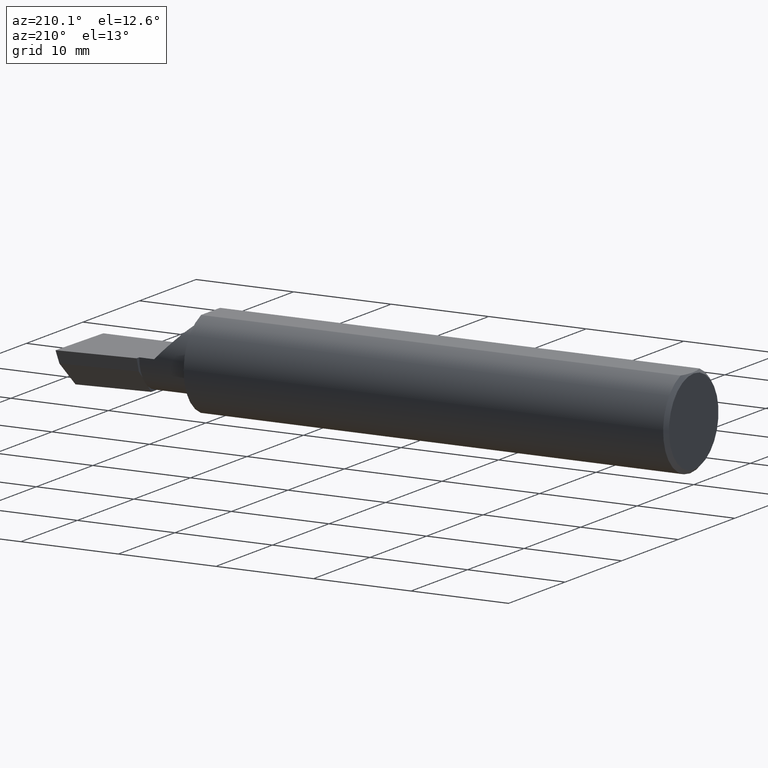
[diagram: clean part render]
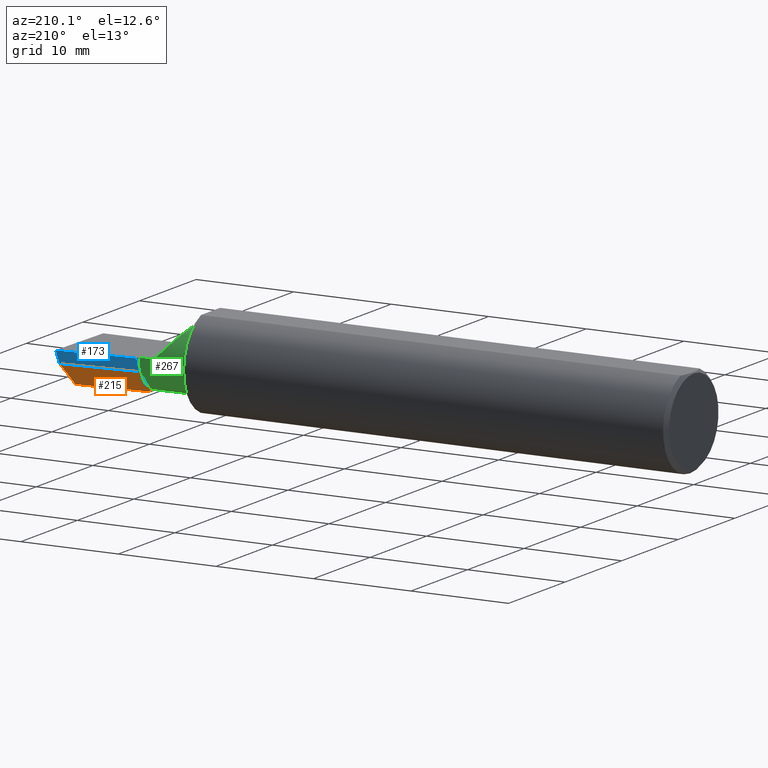
[diagram: same view with three faces highlighted in distinct colors, each labeled with its STEP entity id]
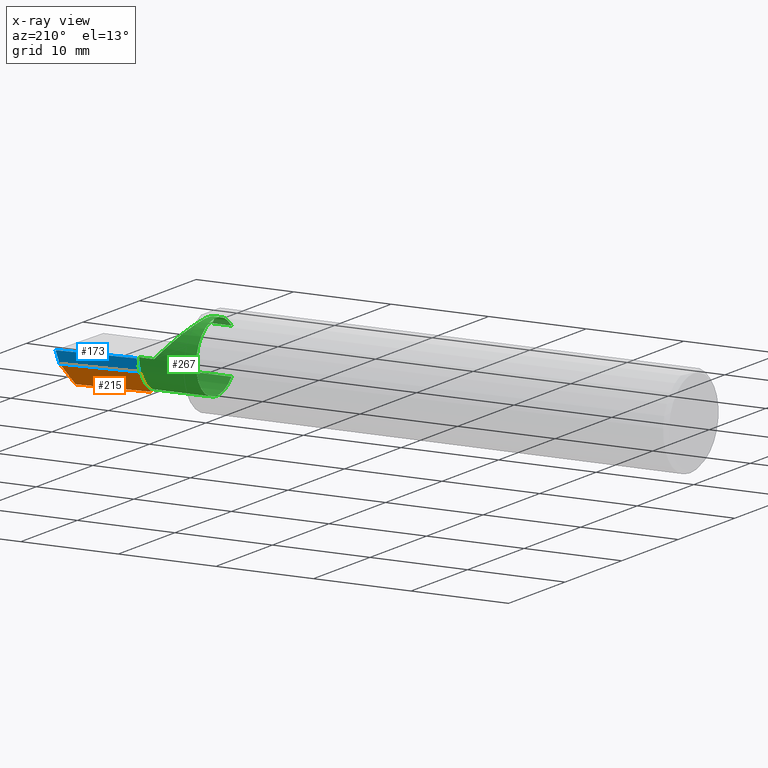
[diagram: x-ray of the same camera — body ghosted, the three highlighted faces saturated]
A machine part, auxiliary view with three faces highlighted in distinct colors.
The next image is the same camera in x-ray (body ghosted, the three faces saturated) — at least one of them is partly hidden behind the body in this view.
Their STEP definitions:

[orange] entity #215 — the highlighted planar face has unit normal (-0.0689, 0.716, -0.6947).
#14 = LINE ( 'NONE', #219, #458 ) ;
#18 = PLANE ( 'NONE',  #224 ) ;
#24 = CARTESIAN_POINT ( 'NONE',  ( 2.493766568580444432, 0.1168246249203733628, -0.04780233936830585728 ) ) ;
#27 = DIRECTION ( 'NONE',  ( 0.1053106618240634978, 0.6976485211320199165, 0.7086580314005359593 ) ) ;
#37 = VERTEX_POINT ( 'NONE', #203 ) ;
#59 = DIRECTION ( 'NONE',  ( 4.755568962650852797E-18, -0.6963153109074924352, -0.7177360153954948085 ) ) ;
#73 = VERTEX_POINT ( 'NONE', #388 ) ;
#97 = CARTESIAN_POINT ( 'NONE',  ( 2.493439983562941720, 0.1146611065212078395, -0.04999999999999999584 ) ) ;
#101 = CARTESIAN_POINT ( 'NONE',  ( 2.189999999999999947, 0.06026672169836861520, -0.07595093880103576112 ) ) ;
#107 = DIRECTION ( 'NONE',  ( -0.9953961983671800740, -0.09584575252021028391, -1.093478026937437971E-17 ) ) ;
#108 = VECTOR ( 'NONE', #107, 39.37007874015748854 ) ;
#111 = CARTESIAN_POINT ( 'NONE',  ( 2.189999999999999947, 0.06670933817657881404, -0.06931012851386068874 ) ) ;
#113 = EDGE_CURVE ( 'NONE', #37, #142, #530, .T. ) ;
#117 = DIRECTION ( 'NONE',  ( -0.06894566448119619773, 0.7160281025913034503, -0.6946583704589934793 ) ) ;
#127 = LINE ( 'NONE', #24, #182 ) ;
#137 = ORIENTED_EDGE ( 'NONE', *, *, #483, .F. ) ;
#140 = VERTEX_POINT ( 'NONE', #97 ) ;
#142 = VERTEX_POINT ( 'NONE', #476 ) ;
#157 = VECTOR ( 'NONE', #366, 39.37007874015748854 ) ;
#166 = ORIENTED_EDGE ( 'NONE', *, *, #619, .F. ) ;
#177 = EDGE_CURVE ( 'NONE', #73, #448, #14, .T. ) ;
#182 = VECTOR ( 'NONE', #27, 39.37007874015748854 ) ;
#186 = ORIENTED_EDGE ( 'NONE', *, *, #177, .F. ) ;
#203 = CARTESIAN_POINT ( 'NONE',  ( 2.480058035321255794, 0.02601009779168069955, -0.1400500000000000633 ) ) ;
#206 = LINE ( 'NONE', #254, #281 ) ;
#212 = VECTOR ( 'NONE', #59, 39.37007874015748854 ) ;
#213 = DIRECTION ( 'NONE',  ( 4.755568962650852797E-18, -0.6963153109074924352, -0.7177360153954948085 ) ) ;
#215 = ADVANCED_FACE ( 'NONE', ( #457 ), #18, .T. ) ;
#219 = CARTESIAN_POINT ( 'NONE',  ( 2.189999999999999947, 0.06670933817657881404, -0.06931012851386068874 ) ) ;
#224 = AXIS2_PLACEMENT_3D ( 'NONE', #589, #117, #364 ) ;
#225 = CARTESIAN_POINT ( 'NONE',  ( 2.189999999999999947, 0.06670933817657881404, -0.06931012851386068874 ) ) ;
#254 = CARTESIAN_POINT ( 'NONE',  ( 2.511419111345318811, 0.1163922996227946677, -0.04999999999999999584 ) ) ;
#281 = VECTOR ( 'NONE', #441, 39.37007874015748854 ) ;
#311 = CARTESIAN_POINT ( 'NONE',  ( 2.189999999999999947, 0.02208021110064887355, -0.1153121786430050255 ) ) ;
#358 = ORIENTED_EDGE ( 'NONE', *, *, #592, .F. ) ;
#364 = DIRECTION ( 'NONE',  ( 0.000000000000000000, 0.6963153109074925462, 0.7177360153954946975 ) ) ;
#366 = DIRECTION ( 'NONE',  ( 4.755568962650852797E-18, -0.6963153109074924352, -0.7177360153954948085 ) ) ;
#388 = CARTESIAN_POINT ( 'NONE',  ( 2.189999999999999947, 0.08544315931885967941, -0.04999999999999999584 ) ) ;
#391 = CARTESIAN_POINT ( 'NONE',  ( 2.491859106488688358, 0.02714641170210404381, -0.1400500000000000633 ) ) ;
#414 = EDGE_LOOP ( 'NONE', ( #358, #419, #166, #137, #186, #467 ) ) ;
#419 = ORIENTED_EDGE ( 'NONE', *, *, #113, .T. ) ;
#441 = DIRECTION ( 'NONE',  ( -0.9953961983671800740, -0.09584575252021031166, 0.000000000000000000 ) ) ;
#448 = VERTEX_POINT ( 'NONE', #101 ) ;
#456 = LINE ( 'NONE', #225, #157 ) ;
#457 = FACE_OUTER_BOUND ( 'NONE', #414, .T. ) ;
#458 = VECTOR ( 'NONE', #213, 39.37007874015748854 ) ;
#467 = ORIENTED_EDGE ( 'NONE', *, *, #556, .F. ) ;
#476 = CARTESIAN_POINT ( 'NONE',  ( 2.189999999999999947, -0.001919314351447025217, -0.1400500000000000911 ) ) ;
#483 = EDGE_CURVE ( 'NONE', #448, #504, #534, .T. ) ;
#504 = VERTEX_POINT ( 'NONE', #311 ) ;
#530 = LINE ( 'NONE', #391, #108 ) ;
#534 = LINE ( 'NONE', #111, #212 ) ;
#556 = EDGE_CURVE ( 'NONE', #140, #73, #206, .T. ) ;
#589 = CARTESIAN_POINT ( 'NONE',  ( 2.511419111345318811, 0.1163922996227946677, -0.04999999999999999584 ) ) ;
#592 = EDGE_CURVE ( 'NONE', #37, #140, #127, .T. ) ;
#619 = EDGE_CURVE ( 'NONE', #504, #142, #456, .T. ) ;

[blue] entity #173 — the highlighted planar face has unit normal (-0.0917, 0.9519, -0.2924).
#12 = LINE ( 'NONE', #218, #620 ) ;
#33 = VERTEX_POINT ( 'NONE', #296 ) ;
#42 = CARTESIAN_POINT ( 'NONE',  ( 0.5470260790800310913, -0.05740000000000000657, 2.701812985571357332E-16 ) ) ;
#73 = VERTEX_POINT ( 'NONE', #388 ) ;
#97 = CARTESIAN_POINT ( 'NONE',  ( 2.493439983562941720, 0.1146611065212078395, -0.04999999999999999584 ) ) ;
#140 = VERTEX_POINT ( 'NONE', #97 ) ;
#173 = ADVANCED_FACE ( 'NONE', ( #454 ), #443, .T. ) ;
#181 = VECTOR ( 'NONE', #616, 39.37007874015748143 ) ;
#206 = LINE ( 'NONE', #254, #281 ) ;
#211 = DIRECTION ( 'NONE',  ( 0.1240019227988267692, 0.3022330132596589558, 0.9451342385281472636 ) ) ;
#218 = CARTESIAN_POINT ( 'NONE',  ( 2.500188977433779769, 0.1311105994646662165, 0.001440373173041438384 ) ) ;
#226 = DIRECTION ( 'NONE',  ( 0.000000000000000000, 0.2936076258024060137, 0.9559260233253795702 ) ) ;
#254 = CARTESIAN_POINT ( 'NONE',  ( 2.511419111345318811, 0.1163922996227946677, -0.04999999999999999584 ) ) ;
#268 = ORIENTED_EDGE ( 'NONE', *, *, #556, .T. ) ;
#274 = CARTESIAN_POINT ( 'NONE',  ( 2.189999999999999947, 0.09745742888373043478, -0.01088401009027229437 ) ) ;
#281 = VECTOR ( 'NONE', #441, 39.37007874015748854 ) ;
#296 = CARTESIAN_POINT ( 'NONE',  ( 2.499999999999978684, 0.1306500000000237194, 8.388614136560643774E-14 ) ) ;
#312 = VECTOR ( 'NONE', #323, 39.37007874015748854 ) ;
#323 = DIRECTION ( 'NONE',  ( 2.005228508682076280E-18, -0.2936076258024060137, -0.9559260233253795702 ) ) ;
#361 = DIRECTION ( 'NONE',  ( -0.09165774897393341725, 0.9519021185660614393, -0.2923717047227303301 ) ) ;
#369 = ORIENTED_EDGE ( 'NONE', *, *, #600, .F. ) ;
#376 = ORIENTED_EDGE ( 'NONE', *, *, #569, .F. ) ;
#388 = CARTESIAN_POINT ( 'NONE',  ( 2.189999999999999947, 0.08544315931885967941, -0.04999999999999999584 ) ) ;
#397 = CARTESIAN_POINT ( 'NONE',  ( 2.509953961983673043, 0.1316084575252021716, -6.829619984160658046E-17 ) ) ;
#411 = EDGE_CURVE ( 'NONE', #460, #33, #424, .T. ) ;
#424 = LINE ( 'NONE', #42, #181 ) ;
#441 = DIRECTION ( 'NONE',  ( -0.9953961983671800740, -0.09584575252021031166, 0.000000000000000000 ) ) ;
#443 = PLANE ( 'NONE',  #486 ) ;
#454 = FACE_OUTER_BOUND ( 'NONE', #590, .T. ) ;
#460 = VERTEX_POINT ( 'NONE', #495 ) ;
#486 = AXIS2_PLACEMENT_3D ( 'NONE', #397, #361, #226 ) ;
#495 = CARTESIAN_POINT ( 'NONE',  ( 2.189999999999999947, 0.1008003950587674363, 3.308097179827818849E-16 ) ) ;
#556 = EDGE_CURVE ( 'NONE', #140, #73, #206, .T. ) ;
#569 = EDGE_CURVE ( 'NONE', #140, #33, #12, .T. ) ;
#590 = EDGE_LOOP ( 'NONE', ( #376, #268, #369, #598 ) ) ;
#598 = ORIENTED_EDGE ( 'NONE', *, *, #411, .T. ) ;
#600 = EDGE_CURVE ( 'NONE', #460, #73, #603, .T. ) ;
#603 = LINE ( 'NONE', #274, #312 ) ;
#616 = DIRECTION ( 'NONE',  ( 0.9953961983671787417, 0.09584575252022456415, -1.028972571603813720E-16 ) ) ;
#620 = VECTOR ( 'NONE', #211, 39.37007874015748143 ) ;

[green] entity #267 — the highlighted cylindrical surface (partial cylindrical patch) has radius 3.5573 mm, axis along (-1, -0, -0).
#11 = CIRCLE ( 'NONE', #367, 0.1400500000000000356 ) ;
#16 = EDGE_CURVE ( 'NONE', #504, #329, #199, .T. ) ;
#47 =( BOUNDED_CURVE ( )  B_SPLINE_CURVE ( 3, ( #54, #57, #301, #250 ),
 .UNSPECIFIED., .F., .T. ) 
 B_SPLINE_CURVE_WITH_KNOTS ( ( 4, 4 ),
 ( 5.632580117768155148, 6.493234751459282528 ),
 .UNSPECIFIED. ) 
 CURVE ( )  GEOMETRIC_REPRESENTATION_ITEM ( )  RATIONAL_B_SPLINE_CURVE ( ( 1.000000000000000000, 0.9392195014330944058, 0.9392195014330944058, 1.000000000000000000 ) ) 
 REPRESENTATION_ITEM ( '' )  );
#54 = CARTESIAN_POINT ( 'NONE',  ( 2.481080296960508580, -0.1635956445993030084, -0.09130436773856176469 ) ) ;
#57 = CARTESIAN_POINT ( 'NONE',  ( 2.477925907309857401, -0.1365595166907235813, -0.1227499502647108609 ) ) ;
#63 = AXIS2_PLACEMENT_3D ( 'NONE', #349, #436, #110 ) ;
#79 = VERTEX_POINT ( 'NONE', #300 ) ;
#80 = ORIENTED_EDGE ( 'NONE', *, *, #195, .T. ) ;
#90 = CARTESIAN_POINT ( 'NONE',  ( 1.959999999999999964, -0.05739999999999999963, 0.000000000000000000 ) ) ;
#95 = CIRCLE ( 'NONE', #494, 0.1400500000000000356 ) ;
#96 = CARTESIAN_POINT ( 'NONE',  ( 2.477873865042410806, -0.05739999999999999963, -0.1400500000000000633 ) ) ;
#101 = CARTESIAN_POINT ( 'NONE',  ( 2.189999999999999947, 0.06026672169836861520, -0.07595093880103576112 ) ) ;
#105 = LINE ( 'NONE', #208, #575 ) ;
#110 = DIRECTION ( 'NONE',  ( 0.000000000000000000, -1.000000000000000000, 0.000000000000000000 ) ) ;
#112 = CARTESIAN_POINT ( 'NONE',  ( 1.959999999999999964, -0.1635956445993023423, -0.09130436773856262511 ) ) ;
#125 = DIRECTION ( 'NONE',  ( 1.000000000000000000, 6.829619984160658046E-18, 0.000000000000000000 ) ) ;
#133 = EDGE_CURVE ( 'NONE', #79, #493, #145, .T. ) ;
#145 = LINE ( 'NONE', #337, #192 ) ;
#156 = DIRECTION ( 'NONE',  ( -1.000000000000000000, -6.829619984160658046E-18, -0.000000000000000000 ) ) ;
#169 = FACE_OUTER_BOUND ( 'NONE', #516, .T. ) ;
#175 = VERTEX_POINT ( 'NONE', #265 ) ;
#176 = DIRECTION ( 'NONE',  ( -1.000000000000000000, 5.691349986800549142E-18, -0.000000000000000000 ) ) ;
#179 = CARTESIAN_POINT ( 'NONE',  ( 0.000000000000000000, -0.05740000000000001351, 0.000000000000000000 ) ) ;
#183 = ORIENTED_EDGE ( 'NONE', *, *, #539, .F. ) ;
#192 = VECTOR ( 'NONE', #522, 39.37007874015748143 ) ;
#193 = VERTEX_POINT ( 'NONE', #112 ) ;
#194 = CARTESIAN_POINT ( 'NONE',  ( 2.189999999999999947, -0.05739999999999999963, -0.1400500000000000633 ) ) ;
#195 = EDGE_CURVE ( 'NONE', #507, #422, #548, .T. ) ;
#199 = CIRCLE ( 'NONE', #63, 0.1400500000000000356 ) ;
#208 = CARTESIAN_POINT ( 'NONE',  ( 2.075000000000000178, -0.1635956445993030084, -0.09130436773856176469 ) ) ;
#216 = CARTESIAN_POINT ( 'NONE',  ( 2.189999999999999947, -0.05739999999999999963, 0.000000000000000000 ) ) ;
#229 = ORIENTED_EDGE ( 'NONE', *, *, #230, .F. ) ;
#230 = EDGE_CURVE ( 'NONE', #504, #448, #566, .T. ) ;
#244 = CARTESIAN_POINT ( 'NONE',  ( 1.921229036482944075, -0.06260079402492431389, 0.2087709635170538203 ) ) ;
#250 = CARTESIAN_POINT ( 'NONE',  ( 2.477873865042410806, -0.05739999999999999963, -0.1400500000000000633 ) ) ;
#265 = CARTESIAN_POINT ( 'NONE',  ( 2.481080296960508580, -0.1635956445993030084, -0.09130436773856176469 ) ) ;
#267 = ADVANCED_FACE ( 'NONE', ( #169 ), #545, .T. ) ;
#286 = CARTESIAN_POINT ( 'NONE',  ( 2.038695632261437130, -0.1635956445993029529, 0.09130436773856191734 ) ) ;
#288 = DIRECTION ( 'NONE',  ( -1.000000000000000000, -6.829619984160658046E-18, -0.000000000000000000 ) ) ;
#289 = VERTEX_POINT ( 'NONE', #96 ) ;
#300 = CARTESIAN_POINT ( 'NONE',  ( 2.129999999999999893, 0.08264999999999990410, 1.065442715258197396E-16 ) ) ;
#301 = CARTESIAN_POINT ( 'NONE',  ( 2.476787929832031221, -0.09887019258091186980, -0.1400500000000000356 ) ) ;
#309 =( BOUNDED_CURVE ( )  B_SPLINE_CURVE ( 3, ( #517, #244, #472, #430 ),
 .UNSPECIFIED., .F., .T. ) 
 B_SPLINE_CURVE_WITH_KNOTS ( ( 4, 4 ),
 ( 5.422530673488458852, 7.853981633974482790 ),
 .UNSPECIFIED. ) 
 CURVE ( )  GEOMETRIC_REPRESENTATION_ITEM ( )  RATIONAL_B_SPLINE_CURVE ( ( 1.000000000000000000, 0.5651045289226863666, 0.5651045289226863666, 1.000000000000000000 ) ) 
 REPRESENTATION_ITEM ( '' )  );
#311 = CARTESIAN_POINT ( 'NONE',  ( 2.189999999999999947, 0.02208021110064887355, -0.1153121786430050255 ) ) ;
#320 = ORIENTED_EDGE ( 'NONE', *, *, #133, .T. ) ;
#327 = EDGE_CURVE ( 'NONE', #422, #79, #309, .T. ) ;
#329 = VERTEX_POINT ( 'NONE', #194 ) ;
#337 = CARTESIAN_POINT ( 'NONE',  ( -9.564882787816664242E-19, 0.08264999999999998737, 3.267291166268304703E-16 ) ) ;
#348 = AXIS2_PLACEMENT_3D ( 'NONE', #216, #401, #597 ) ;
#349 = CARTESIAN_POINT ( 'NONE',  ( 2.189999999999999947, -0.05739999999999999963, 0.000000000000000000 ) ) ;
#350 = DIRECTION ( 'NONE',  ( 0.000000000000000000, -1.000000000000000000, 0.000000000000000000 ) ) ;
#353 = ORIENTED_EDGE ( 'NONE', *, *, #490, .T. ) ;
#367 = AXIS2_PLACEMENT_3D ( 'NONE', #90, #288, #375 ) ;
#368 = DIRECTION ( 'NONE',  ( -1.000000000000000000, -6.829619984160658046E-18, -0.000000000000000000 ) ) ;
#375 = DIRECTION ( 'NONE',  ( 0.000000000000000000, -1.000000000000000000, 0.000000000000000000 ) ) ;
#380 = EDGE_CURVE ( 'NONE', #507, #193, #11, .T. ) ;
#382 = DIRECTION ( 'NONE',  ( 6.829619984160658816E-18, -1.000000000000000000, 0.000000000000000000 ) ) ;
#384 = VECTOR ( 'NONE', #176, 39.37007874015748143 ) ;
#400 = DIRECTION ( 'NONE',  ( -1.000000000000000000, -6.829619984160658046E-18, -0.000000000000000000 ) ) ;
#401 = DIRECTION ( 'NONE',  ( 1.000000000000000000, 6.829619984160658046E-18, 0.000000000000000000 ) ) ;
#405 = ORIENTED_EDGE ( 'NONE', *, *, #327, .T. ) ;
#406 = CARTESIAN_POINT ( 'NONE',  ( 2.075000000000000178, -0.1635956445993030084, 0.09130436773856176469 ) ) ;
#408 = AXIS2_PLACEMENT_3D ( 'NONE', #179, #368, #382 ) ;
#416 = ORIENTED_EDGE ( 'NONE', *, *, #477, .T. ) ;
#422 = VERTEX_POINT ( 'NONE', #286 ) ;
#423 = VECTOR ( 'NONE', #125, 39.37007874015748143 ) ;
#430 = CARTESIAN_POINT ( 'NONE',  ( 2.129999999999999893, 0.08264999999999990410, 1.065442715258197396E-16 ) ) ;
#436 = DIRECTION ( 'NONE',  ( -1.000000000000000000, -6.829619984160658046E-18, -0.000000000000000000 ) ) ;
#448 = VERTEX_POINT ( 'NONE', #101 ) ;
#472 = CARTESIAN_POINT ( 'NONE',  ( 1.975085956200449022, 0.08265000000000000124, 0.1549140437995494002 ) ) ;
#477 = EDGE_CURVE ( 'NONE', #493, #448, #95, .T. ) ;
#482 = CARTESIAN_POINT ( 'NONE',  ( 1.959999999999999964, -0.1635956445993024533, 0.09130436773856250021 ) ) ;
#490 = EDGE_CURVE ( 'NONE', #175, #193, #105, .T. ) ;
#493 = VERTEX_POINT ( 'NONE', #527 ) ;
#494 = AXIS2_PLACEMENT_3D ( 'NONE', #529, #156, #350 ) ;
#498 = LINE ( 'NONE', #502, #384 ) ;
#502 = CARTESIAN_POINT ( 'NONE',  ( 2.500000000000000000, -0.05739999999999999963, -0.1400500000000000633 ) ) ;
#504 = VERTEX_POINT ( 'NONE', #311 ) ;
#507 = VERTEX_POINT ( 'NONE', #482 ) ;
#516 = EDGE_LOOP ( 'NONE', ( #183, #353, #617, #80, #405, #320, #416, #229, #602, #568 ) ) ;
#517 = CARTESIAN_POINT ( 'NONE',  ( 2.038695632261437130, -0.1635956445993029529, 0.09130436773856191734 ) ) ;
#522 = DIRECTION ( 'NONE',  ( 1.000000000000000000, 6.829619984160658046E-18, 0.000000000000000000 ) ) ;
#527 = CARTESIAN_POINT ( 'NONE',  ( 2.189999999999999947, 0.08265000000000004288, 3.267291166268305196E-16 ) ) ;
#529 = CARTESIAN_POINT ( 'NONE',  ( 2.189999999999999947, -0.05739999999999999963, 0.000000000000000000 ) ) ;
#539 = EDGE_CURVE ( 'NONE', #175, #289, #47, .T. ) ;
#545 = CYLINDRICAL_SURFACE ( 'NONE', #408, 0.1400500000000000078 ) ;
#548 = LINE ( 'NONE', #406, #423 ) ;
#566 = CIRCLE ( 'NONE', #348, 0.1400500000000000356 ) ;
#568 = ORIENTED_EDGE ( 'NONE', *, *, #607, .F. ) ;
#575 = VECTOR ( 'NONE', #400, 39.37007874015748143 ) ;
#597 = DIRECTION ( 'NONE',  ( 0.000000000000000000, -1.000000000000000000, 0.000000000000000000 ) ) ;
#602 = ORIENTED_EDGE ( 'NONE', *, *, #16, .T. ) ;
#607 = EDGE_CURVE ( 'NONE', #289, #329, #498, .T. ) ;
#617 = ORIENTED_EDGE ( 'NONE', *, *, #380, .F. ) ;